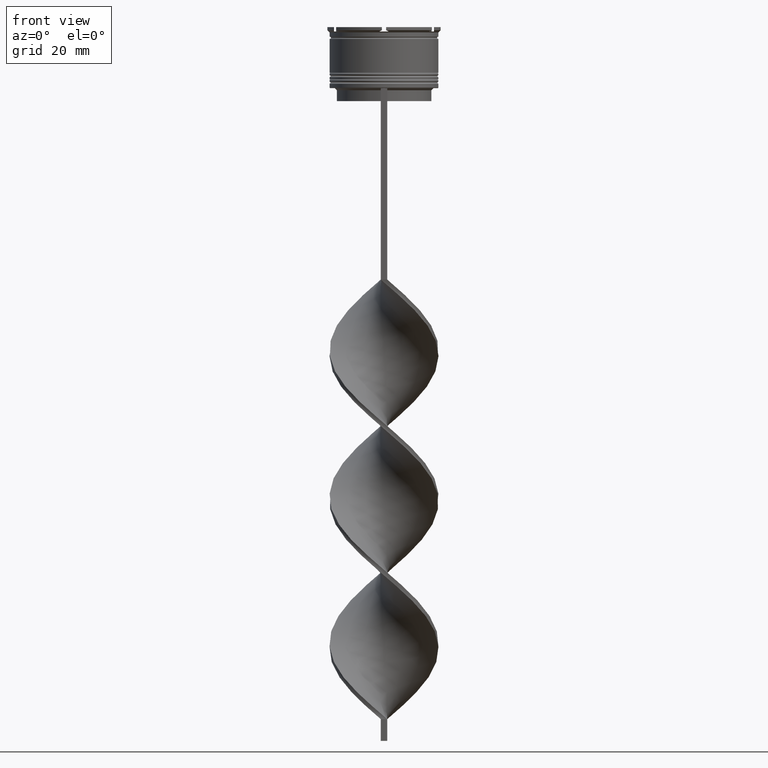
[diagram: clean part render]
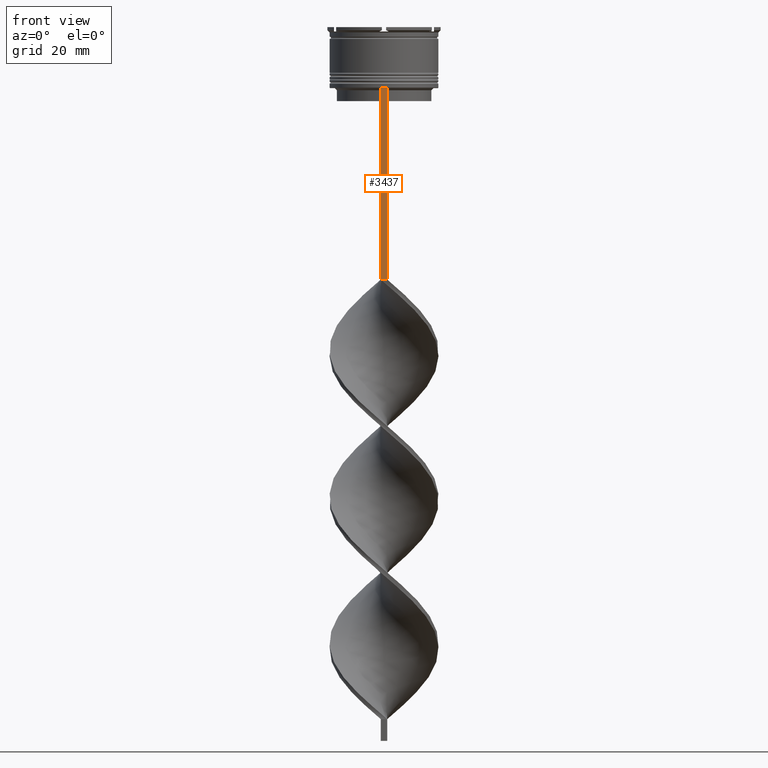
[diagram: same view with one face highlighted and labeled with its STEP entity id]
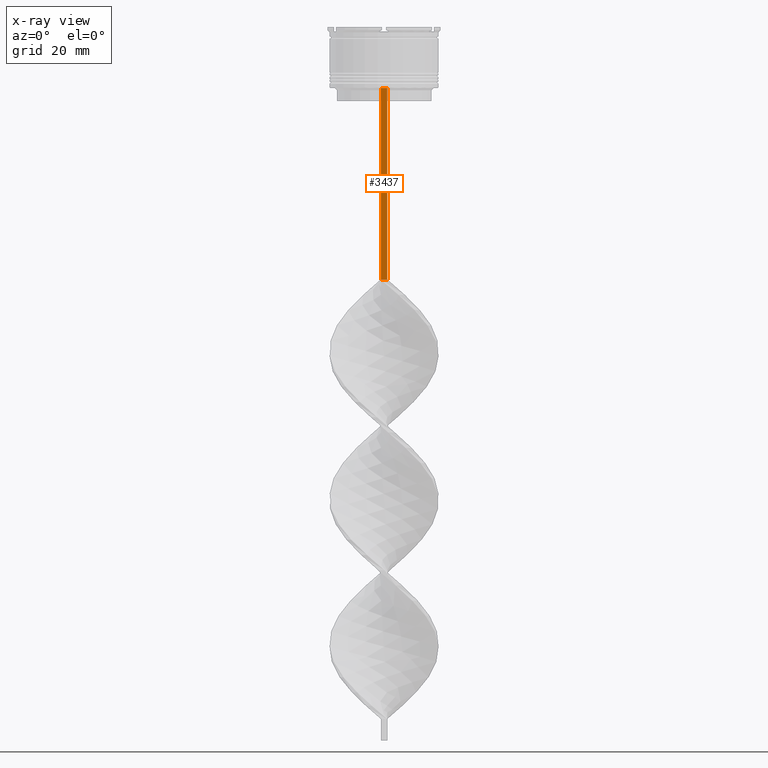
[diagram: x-ray of the same camera — body ghosted, the highlighted face saturated]
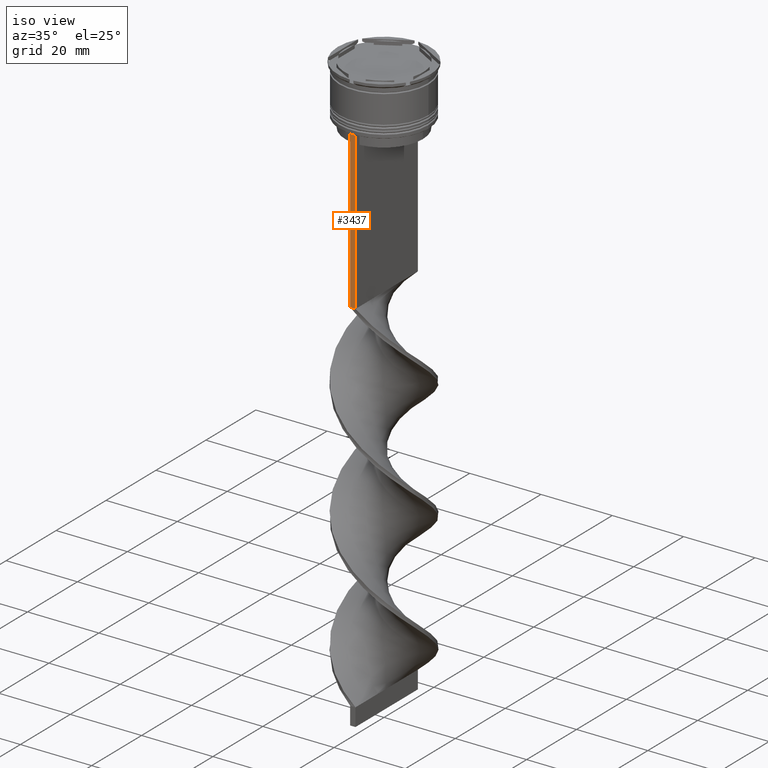
[diagram: same view with one face highlighted and labeled with its STEP entity id]
A machine part, front view. The second image highlights one B-rep face of the part: STEP entity #3437.
The next image is the same camera in x-ray: the body ghosted, the highlighted face saturated — about 0% of this face is hidden behind the body in this view.
A second angle (iso view) of the same face is appended — the face is thin or edge-on in the first view.
In plain terms, the highlighted planar face has unit normal (0, -1, -0).
Its self-contained STEP definition (entity closure, byte-faithful):
#141 = LINE ( 'NONE', #3049, #3656 ) ;
#431 = DIRECTION ( 'NONE',  ( -1.000000000000000000, 0.000000000000000000, 0.000000000000000000 ) ) ;
#473 = DIRECTION ( 'NONE',  ( 1.000000000000000000, 0.000000000000000000, 0.000000000000000000 ) ) ;
#609 = CARTESIAN_POINT ( 'NONE',  ( 0.7500000000000002220, -12.50000000000000000, 11.04495957273638673 ) ) ;
#663 = VERTEX_POINT ( 'NONE', #3974 ) ;
#671 = VERTEX_POINT ( 'NONE', #2053 ) ;
#729 = VERTEX_POINT ( 'NONE', #3746 ) ;
#744 = LINE ( 'NONE', #2951, #3208 ) ;
#824 = LINE ( 'NONE', #1115, #1830 ) ;
#1115 = CARTESIAN_POINT ( 'NONE',  ( 0.7500000000000002220, -12.50000000000000000, -58.00000000000000000 ) ) ;
#1170 = EDGE_CURVE ( 'NONE', #671, #663, #141, .T. ) ;
#1267 = PLANE ( 'NONE',  #3931 ) ;
#1290 = DIRECTION ( 'NONE',  ( 0.000000000000000000, 0.000000000000000000, -1.000000000000000000 ) ) ;
#1429 = ORIENTED_EDGE ( 'NONE', *, *, #3147, .T. ) ;
#1646 = CARTESIAN_POINT ( 'NONE',  ( -0.7499999999999997780, -12.50000000000000000, -58.00000000000000000 ) ) ;
#1822 = DIRECTION ( 'NONE',  ( 0.000000000000000000, 0.000000000000000000, -1.000000000000000000 ) ) ;
#1830 = VECTOR ( 'NONE', #431, 1000.000000000000000 ) ;
#1857 = CARTESIAN_POINT ( 'NONE',  ( 0.7500000000000002220, -12.50000000000000000, 11.04495957273638673 ) ) ;
#1914 = EDGE_CURVE ( 'NONE', #729, #3092, #824, .T. ) ;
#2053 = CARTESIAN_POINT ( 'NONE',  ( -0.7499999999999997780, -12.50000000000000000, -14.00000000000000178 ) ) ;
#2119 = LINE ( 'NONE', #609, #3601 ) ;
#2487 = FACE_OUTER_BOUND ( 'NONE', #3189, .T. ) ;
#2685 = ORIENTED_EDGE ( 'NONE', *, *, #1170, .F. ) ;
#2951 = CARTESIAN_POINT ( 'NONE',  ( -0.7499999999999997780, -12.50000000000000000, 11.04495957273638673 ) ) ;
#3049 = CARTESIAN_POINT ( 'NONE',  ( 0.7500000000000002220, -12.50000000000000000, -14.00000000000000178 ) ) ;
#3060 = ORIENTED_EDGE ( 'NONE', *, *, #1914, .F. ) ;
#3092 = VERTEX_POINT ( 'NONE', #1646 ) ;
#3107 = ORIENTED_EDGE ( 'NONE', *, *, #3981, .F. ) ;
#3138 = DIRECTION ( 'NONE',  ( 0.000000000000000000, -1.000000000000000000, -0.000000000000000000 ) ) ;
#3147 = EDGE_CURVE ( 'NONE', #671, #3092, #744, .T. ) ;
#3189 = EDGE_LOOP ( 'NONE', ( #2685, #1429, #3060, #3107 ) ) ;
#3208 = VECTOR ( 'NONE', #1290, 1000.000000000000000 ) ;
#3437 = ADVANCED_FACE ( 'NONE', ( #2487 ), #1267, .T. ) ;
#3601 = VECTOR ( 'NONE', #1822, 1000.000000000000000 ) ;
#3656 = VECTOR ( 'NONE', #473, 1000.000000000000000 ) ;
#3746 = CARTESIAN_POINT ( 'NONE',  ( 0.7500000000000002220, -12.50000000000000000, -58.00000000000000000 ) ) ;
#3824 = DIRECTION ( 'NONE',  ( 0.000000000000000000, 0.000000000000000000, -1.000000000000000000 ) ) ;
#3931 = AXIS2_PLACEMENT_3D ( 'NONE', #1857, #3138, #3824 ) ;
#3974 = CARTESIAN_POINT ( 'NONE',  ( 0.7500000000000002220, -12.50000000000000000, -14.00000000000000178 ) ) ;
#3981 = EDGE_CURVE ( 'NONE', #663, #729, #2119, .T. ) ;